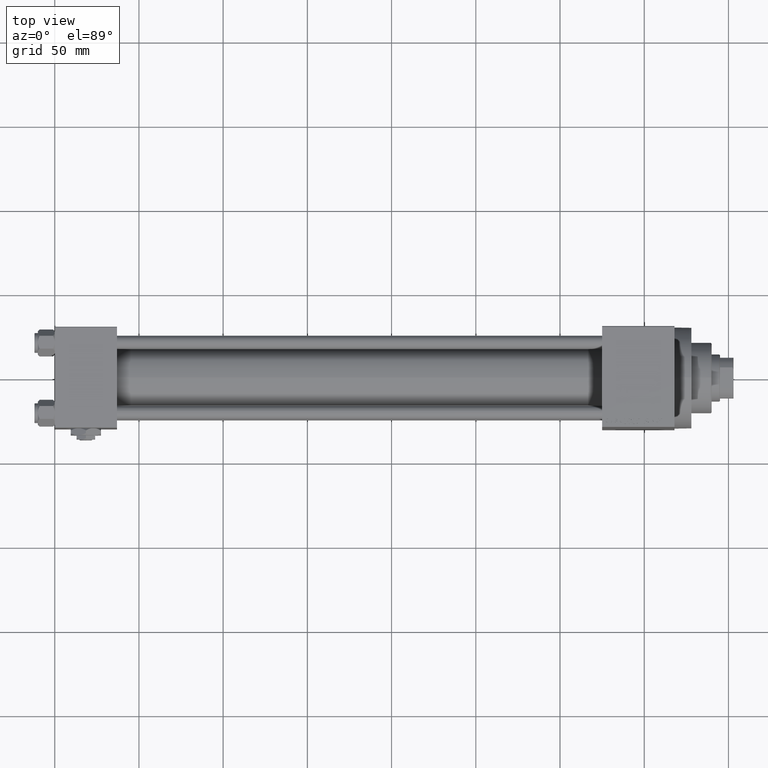
[diagram: clean part render]
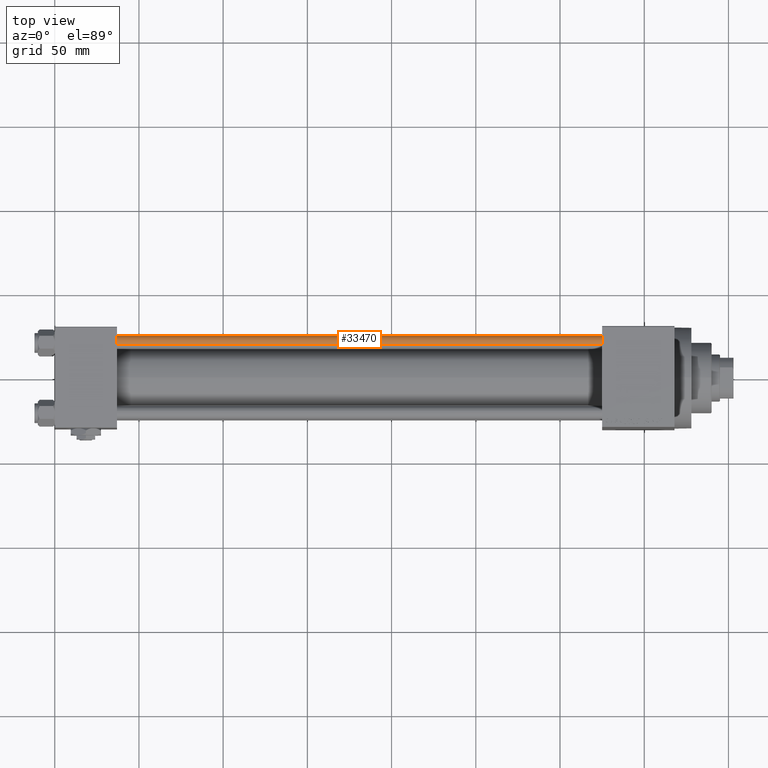
[diagram: same view with one face highlighted and labeled with its STEP entity id]
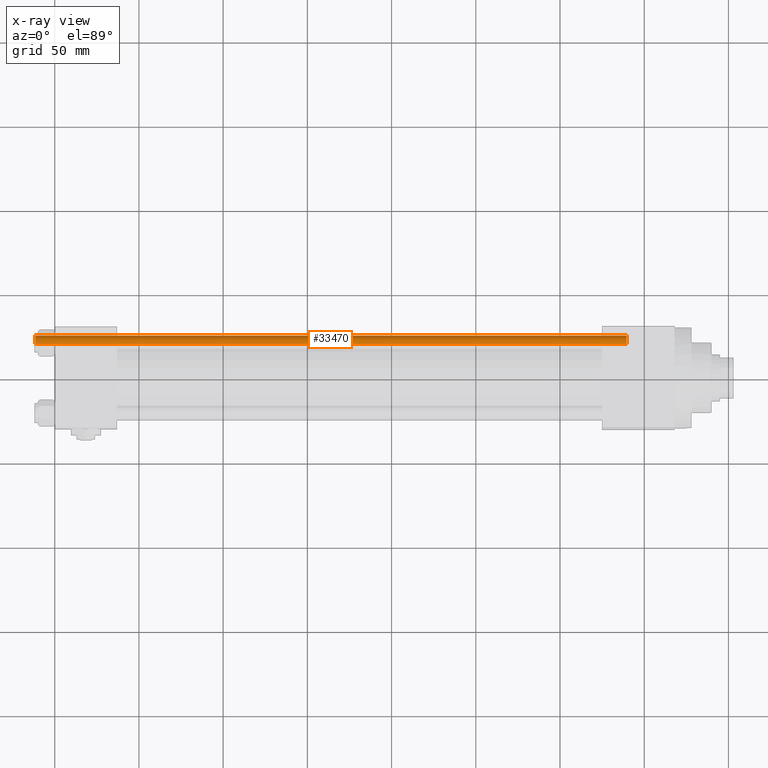
[diagram: x-ray of the same camera — body ghosted, the highlighted face saturated]
A machine part, top view. The second image highlights one B-rep face of the part: STEP entity #33470.
The next image is the same camera in x-ray: the body ghosted, the highlighted face saturated — about 0% of this face is hidden behind the body in this view.
In plain terms, the highlighted cylindrical surface (edge-blend (fillet) strip) has radius 4 mm, axis along (-1, -0, 0).
Its self-contained STEP definition (entity closure, byte-faithful):
#1922 = AXIS2_PLACEMENT_3D ( 'NONE', #29808, #10631, #41749 ) ;
#1994 = DIRECTION ( 'NONE',  ( -0.000000000000000000, -0.000000000000000000, -1.000000000000000000 ) ) ;
#2453 = AXIS2_PLACEMENT_3D ( 'NONE', #22901, #19847, #47000 ) ;
#3717 = CARTESIAN_POINT ( 'NONE',  ( 4.000000000000000000, 4.898587196589412829E-16, 351.5000000000000000 ) ) ;
#5098 = CARTESIAN_POINT ( 'NONE',  ( -4.000000000000000000, 0.000000000000000000, 0.5000000000000004441 ) ) ;
#5116 = CARTESIAN_POINT ( 'NONE',  ( -4.000000000000000000, 0.000000000000000000, 352.0000000000000000 ) ) ;
#8422 = LINE ( 'NONE', #12147, #14596 ) ;
#9146 = DIRECTION ( 'NONE',  ( -0.000000000000000000, -0.000000000000000000, -1.000000000000000000 ) ) ;
#10631 = DIRECTION ( 'NONE',  ( 0.000000000000000000, 0.000000000000000000, -1.000000000000000000 ) ) ;
#12147 = CARTESIAN_POINT ( 'NONE',  ( 4.000000000000000000, 4.898587196589412829E-16, 352.0000000000000000 ) ) ;
#14596 = VECTOR ( 'NONE', #9146, 1000.000000000000000 ) ;
#15729 = EDGE_CURVE ( 'NONE', #15834, #15951, #21522, .T. ) ;
#15834 = VERTEX_POINT ( 'NONE', #25540 ) ;
#15951 = VERTEX_POINT ( 'NONE', #5098 ) ;
#16925 = CYLINDRICAL_SURFACE ( 'NONE', #21743, 4.000000000000000000 ) ;
#17462 = VERTEX_POINT ( 'NONE', #26054 ) ;
#18971 = EDGE_LOOP ( 'NONE', ( #45383, #38038, #33435, #33832 ) ) ;
#19847 = DIRECTION ( 'NONE',  ( -0.000000000000000000, -0.000000000000000000, 1.000000000000000000 ) ) ;
#20954 = EDGE_CURVE ( 'NONE', #17462, #15951, #28256, .T. ) ;
#21522 = CIRCLE ( 'NONE', #2453, 4.000000000000000000 ) ;
#21743 = AXIS2_PLACEMENT_3D ( 'NONE', #25623, #1994, #32613 ) ;
#22901 = CARTESIAN_POINT ( 'NONE',  ( 0.000000000000000000, 0.000000000000000000, 0.5000000000000004441 ) ) ;
#25540 = CARTESIAN_POINT ( 'NONE',  ( 4.000000000000000000, 4.898587196589412829E-16, 0.5000000000000004441 ) ) ;
#25623 = CARTESIAN_POINT ( 'NONE',  ( 0.000000000000000000, 0.000000000000000000, 352.0000000000000000 ) ) ;
#26054 = CARTESIAN_POINT ( 'NONE',  ( -4.000000000000000000, 0.000000000000000000, 351.5000000000000000 ) ) ;
#27301 = VERTEX_POINT ( 'NONE', #3717 ) ;
#28256 = LINE ( 'NONE', #5116, #36548 ) ;
#29808 = CARTESIAN_POINT ( 'NONE',  ( 0.000000000000000000, 0.000000000000000000, 351.5000000000000000 ) ) ;
#32613 = DIRECTION ( 'NONE',  ( -1.000000000000000000, 0.000000000000000000, 0.000000000000000000 ) ) ;
#33435 = ORIENTED_EDGE ( 'NONE', *, *, #15729, .T. ) ;
#33470 = ADVANCED_FACE ( 'NONE', ( #37096 ), #16925, .T. ) ;
#33705 = EDGE_CURVE ( 'NONE', #27301, #15834, #8422, .T. ) ;
#33832 = ORIENTED_EDGE ( 'NONE', *, *, #20954, .F. ) ;
#34504 = CIRCLE ( 'NONE', #1922, 4.000000000000000000 ) ;
#34928 = EDGE_CURVE ( 'NONE', #17462, #27301, #34504, .T. ) ;
#35001 = DIRECTION ( 'NONE',  ( -0.000000000000000000, -0.000000000000000000, -1.000000000000000000 ) ) ;
#36548 = VECTOR ( 'NONE', #35001, 1000.000000000000000 ) ;
#37096 = FACE_OUTER_BOUND ( 'NONE', #18971, .T. ) ;
#38038 = ORIENTED_EDGE ( 'NONE', *, *, #33705, .T. ) ;
#41749 = DIRECTION ( 'NONE',  ( 1.000000000000000000, 0.000000000000000000, 0.000000000000000000 ) ) ;
#45383 = ORIENTED_EDGE ( 'NONE', *, *, #34928, .T. ) ;
#47000 = DIRECTION ( 'NONE',  ( 1.000000000000000000, 0.000000000000000000, 0.000000000000000000 ) ) ;